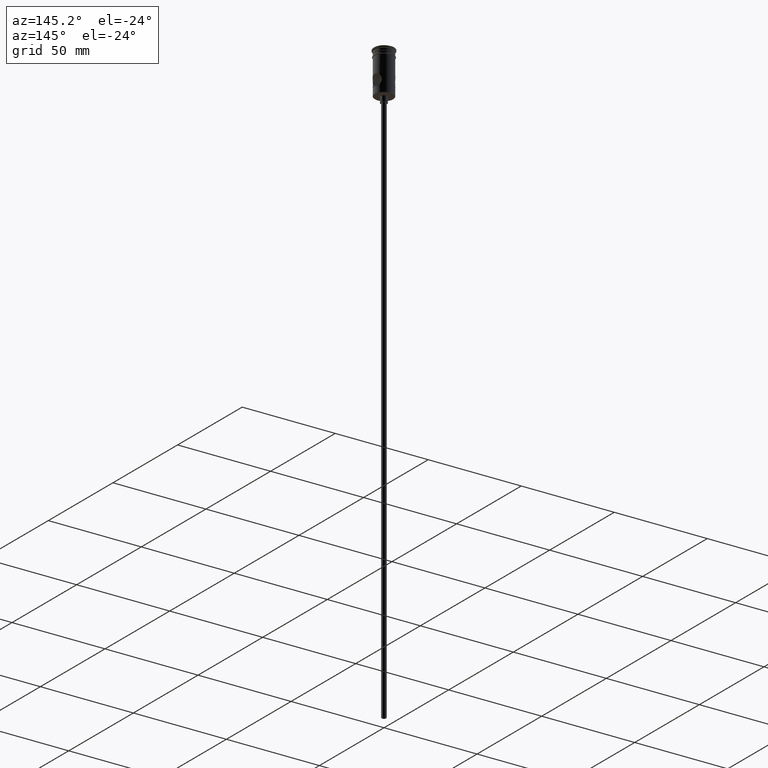
[diagram: clean part render]
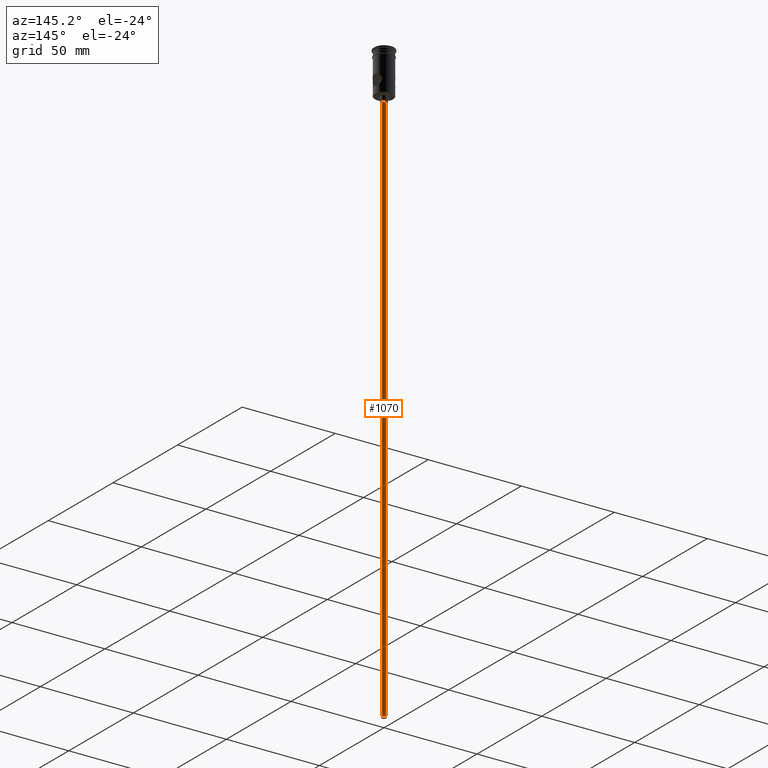
[diagram: same view with one face highlighted and labeled with its STEP entity id]
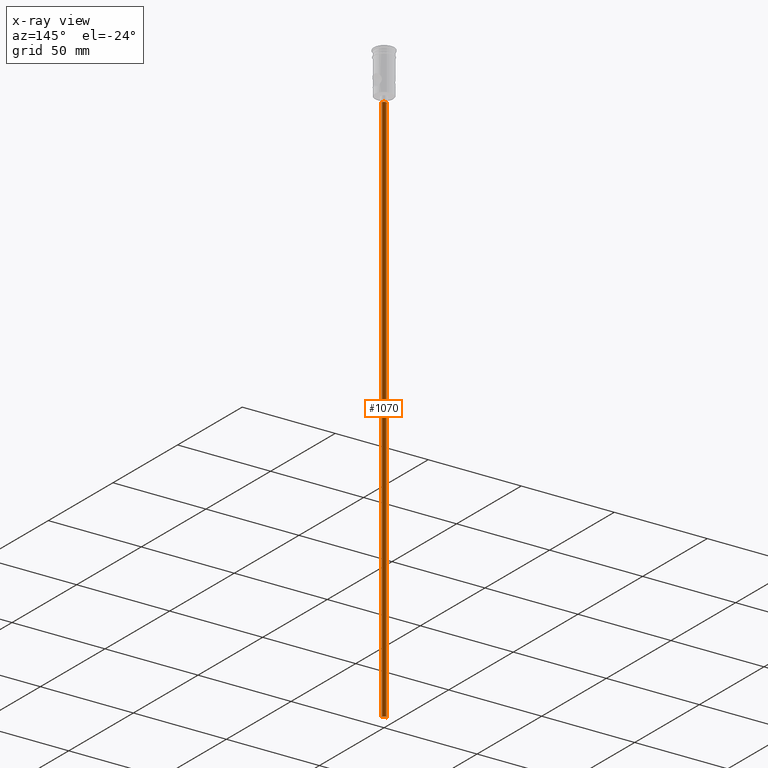
[diagram: x-ray of the same camera — body ghosted, the highlighted face saturated]
A machine part, auxiliary view. The second image highlights one B-rep face of the part: STEP entity #1070.
The next image is the same camera in x-ray: the body ghosted, the highlighted face saturated — about 0% of this face is hidden behind the body in this view.
In plain terms, the highlighted cylindrical surface (edge-blend (fillet) strip) has radius 1.25 mm, axis along (-0, -0, 1).
Its self-contained STEP definition (entity closure, byte-faithful):
#24 = CARTESIAN_POINT ( 'NONE',  ( 1.250000000000000000, 0.000000000000000000, -322.5000000000000000 ) ) ;
#34 = DIRECTION ( 'NONE',  ( -0.000000000000000000, -0.000000000000000000, 1.000000000000000000 ) ) ;
#84 = AXIS2_PLACEMENT_3D ( 'NONE', #503, #34, #954 ) ;
#98 = EDGE_CURVE ( 'NONE', #417, #571, #109, .T. ) ;
#101 = DIRECTION ( 'NONE',  ( -0.000000000000000000, -0.000000000000000000, 1.000000000000000000 ) ) ;
#107 = LINE ( 'NONE', #431, #147 ) ;
#109 = CIRCLE ( 'NONE', #692, 1.250000000000000000 ) ;
#147 = VECTOR ( 'NONE', #101, 1000.000000000000000 ) ;
#264 = CYLINDRICAL_SURFACE ( 'NONE', #84, 1.250000000000000000 ) ;
#306 = ORIENTED_EDGE ( 'NONE', *, *, #98, .T. ) ;
#332 = EDGE_CURVE ( 'NONE', #695, #957, #1110, .T. ) ;
#417 = VERTEX_POINT ( 'NONE', #802 ) ;
#431 = CARTESIAN_POINT ( 'NONE',  ( -1.250000000000000000, 1.530808498934191571E-16, -322.5000000000000000 ) ) ;
#459 = ORIENTED_EDGE ( 'NONE', *, *, #332, .F. ) ;
#462 = LINE ( 'NONE', #793, #1148 ) ;
#503 = CARTESIAN_POINT ( 'NONE',  ( 0.000000000000000000, 0.000000000000000000, -322.5000000000000000 ) ) ;
#514 = FACE_OUTER_BOUND ( 'NONE', #922, .T. ) ;
#563 = EDGE_CURVE ( 'NONE', #695, #417, #107, .T. ) ;
#571 = VERTEX_POINT ( 'NONE', #764 ) ;
#615 = CARTESIAN_POINT ( 'NONE',  ( 0.000000000000000000, 0.000000000000000000, -25.50000000000000000 ) ) ;
#667 = CARTESIAN_POINT ( 'NONE',  ( 0.000000000000000000, 0.000000000000000000, -322.5000000000000000 ) ) ;
#692 = AXIS2_PLACEMENT_3D ( 'NONE', #615, #962, #1165 ) ;
#695 = VERTEX_POINT ( 'NONE', #1141 ) ;
#740 = AXIS2_PLACEMENT_3D ( 'NONE', #667, #1109, #895 ) ;
#764 = CARTESIAN_POINT ( 'NONE',  ( 1.250000000000000000, 0.000000000000000000, -25.50000000000000000 ) ) ;
#793 = CARTESIAN_POINT ( 'NONE',  ( 1.250000000000000000, 0.000000000000000000, -322.5000000000000000 ) ) ;
#802 = CARTESIAN_POINT ( 'NONE',  ( -1.250000000000000000, 1.530808498934191571E-16, -25.50000000000000000 ) ) ;
#895 = DIRECTION ( 'NONE',  ( -1.000000000000000000, 0.000000000000000000, 0.000000000000000000 ) ) ;
#919 = EDGE_CURVE ( 'NONE', #957, #571, #462, .T. ) ;
#922 = EDGE_LOOP ( 'NONE', ( #459, #1056, #306, #960 ) ) ;
#954 = DIRECTION ( 'NONE',  ( 1.000000000000000000, 0.000000000000000000, 0.000000000000000000 ) ) ;
#957 = VERTEX_POINT ( 'NONE', #24 ) ;
#960 = ORIENTED_EDGE ( 'NONE', *, *, #919, .F. ) ;
#962 = DIRECTION ( 'NONE',  ( 0.000000000000000000, 0.000000000000000000, -1.000000000000000000 ) ) ;
#1024 = DIRECTION ( 'NONE',  ( -0.000000000000000000, -0.000000000000000000, 1.000000000000000000 ) ) ;
#1056 = ORIENTED_EDGE ( 'NONE', *, *, #563, .T. ) ;
#1070 = ADVANCED_FACE ( 'NONE', ( #514 ), #264, .T. ) ;
#1109 = DIRECTION ( 'NONE',  ( 0.000000000000000000, 0.000000000000000000, -1.000000000000000000 ) ) ;
#1110 = CIRCLE ( 'NONE', #740, 1.250000000000000000 ) ;
#1141 = CARTESIAN_POINT ( 'NONE',  ( -1.250000000000000000, 1.530808498934191571E-16, -322.5000000000000000 ) ) ;
#1148 = VECTOR ( 'NONE', #1024, 1000.000000000000000 ) ;
#1165 = DIRECTION ( 'NONE',  ( -1.000000000000000000, 0.000000000000000000, 0.000000000000000000 ) ) ;